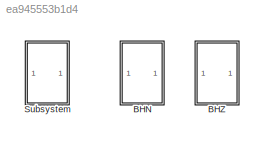
MODEL slx_ea945553b1d4
KIND model
CONFIG AbsTol = auto
CONFIG EnableMultiTasking = off
CONFIG FixedStep = auto
CONFIG MaxStep = auto
CONFIG MinStep = auto
CONFIG RelTol = 1e-3
CONFIG SampleTimeConstraint = Unconstrained
CONFIG SolverName = VariableStepAuto
CONFIG StartTime = 0.0
CONFIG StopTime = 10000
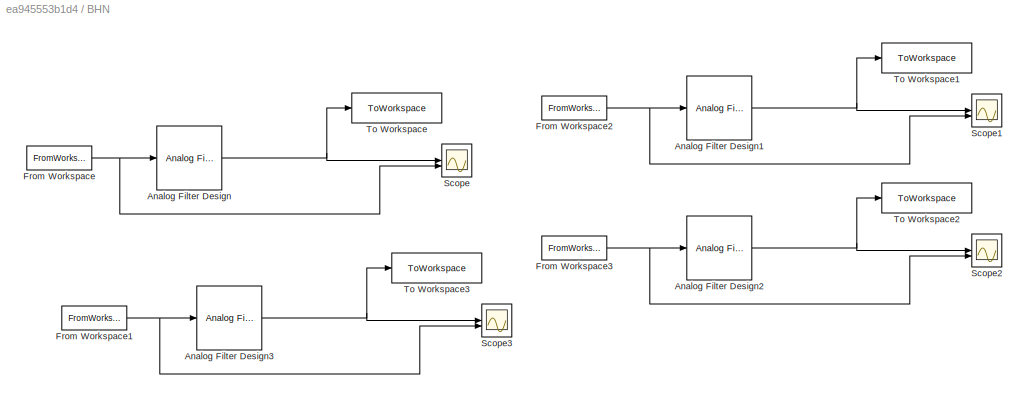
BLOCK [SubSystem] BHN
BLOCK [Reference] BHN/Analog Filter Design  REF=dspfdesign/Analog
Filter Design
  SourceBlock = dspfdesign/Analog\nFilter Design
  SourceType = Analog Filter Design
BLOCK [Reference] BHN/Analog Filter Design1  REF=dspfdesign/Analog
Filter Design
  SourceBlock = dspfdesign/Analog\nFilter Design
  SourceType = Analog Filter Design
BLOCK [Reference] BHN/Analog Filter Design2  REF=dspfdesign/Analog
Filter Design
  SourceBlock = dspfdesign/Analog\nFilter Design
  SourceType = Analog Filter Design
BLOCK [Reference] BHN/Analog Filter Design3  REF=dspfdesign/Analog
Filter Design
  SourceBlock = dspfdesign/Analog\nFilter Design
  SourceType = Analog Filter Design
BLOCK [FromWorkspace] BHN/From Workspace
  OutputAfterFinalValue = Holding final value
  VariableName = dataN_XAN_couple
BLOCK [FromWorkspace] BHN/From Workspace1
  OutputAfterFinalValue = Holding final value
  VariableName = dataN_LANT_couple
BLOCK [FromWorkspace] BHN/From Workspace2
  OutputAfterFinalValue = Holding final value
  VariableName = dataN_MEIX_couple
BLOCK [FromWorkspace] BHN/From Workspace3
  OutputAfterFinalValue = Holding final value
  VariableName = dataN_ZOZT_couple
BLOCK [Scope] BHN/Scope
  Floating = off
  NumInputPorts = 2
  ScopeSpecificationString = Simulink.scopes.TimeScopeBlockCfg('CurrentConfiguration', extmgr.ConfigurationSet(extmgr.Configuration('Core','General UI',true),extmgr.Configuration('Core','Source UI',true),extmgr.Configuration('Sources','WiredSimulink',true,'SampleTime','0.01'),extmgr.Configuration('Visuals','Time Domain',true,'SerializedDisplays',{struct('MinYLimReal','-139110.97189','MaxYLimReal','155657.33771','YLabelReal','...<+1461ch>
BLOCK [Scope] BHN/Scope1
  Floating = off
  NumInputPorts = 2
  ScopeSpecificationString = Simulink.scopes.TimeScopeBlockCfg('CurrentConfiguration', extmgr.ConfigurationSet(extmgr.Configuration('Core','General UI',true),extmgr.Configuration('Core','Source UI',true),extmgr.Configuration('Sources','WiredSimulink',true,'SampleTime','0.01','DataLoggingVariableName','ScopeData1'),extmgr.Configuration('Visuals','Time Domain',true,'SerializedDisplays',{struct('MinYLimReal','-139110.97189','Max...<+1500ch>  <repeated x3 — deduplicated; at blocks: Scope1>
BLOCK [Scope] BHN/Scope2
  Floating = off
  NumInputPorts = 2
  ScopeSpecificationString = Simulink.scopes.TimeScopeBlockCfg('CurrentConfiguration', extmgr.ConfigurationSet(extmgr.Configuration('Core','General UI',true),extmgr.Configuration('Core','Source UI',true),extmgr.Configuration('Sources','WiredSimulink',true,'SampleTime','0.01','DataLoggingVariableName','ScopeData2'),extmgr.Configuration('Visuals','Time Domain',true,'SerializedDisplays',{struct('MinYLimReal','-139110.97189','Max...<+1500ch>  <repeated x3 — deduplicated; at blocks: Scope2>
BLOCK [Scope] BHN/Scope3
  Floating = off
  NumInputPorts = 2
  ScopeSpecificationString = Simulink.scopes.TimeScopeBlockCfg('CurrentConfiguration', extmgr.ConfigurationSet(extmgr.Configuration('Core','General UI',true),extmgr.Configuration('Core','Source UI',true),extmgr.Configuration('Sources','WiredSimulink',true,'SampleTime','0.01','DataLoggingVariableName','ScopeData3'),extmgr.Configuration('Visuals','Time Domain',true,'SerializedDisplays',{struct('MinYLimReal','-139110.97189','Max...<+1500ch>  <repeated x3 — deduplicated; at blocks: Scope3>
BLOCK [ToWorkspace] BHN/To Workspace
  FixptAsFi = on
  MaxDataPoints = inf
  SampleTime = -1
  VariableName = dataN_XAN_filtereded
BLOCK [ToWorkspace] BHN/To Workspace1
  FixptAsFi = on
  MaxDataPoints = inf
  SampleTime = -1
  VariableName = dataN_MEIX_filtereded
BLOCK [ToWorkspace] BHN/To Workspace2
  FixptAsFi = on
  MaxDataPoints = inf
  SampleTime = -1
  VariableName = dataN_ZOZT_filtereded
BLOCK [ToWorkspace] BHN/To Workspace3
  FixptAsFi = on
  MaxDataPoints = inf
  SampleTime = -1
  VariableName = dataN_LANT_filtereded
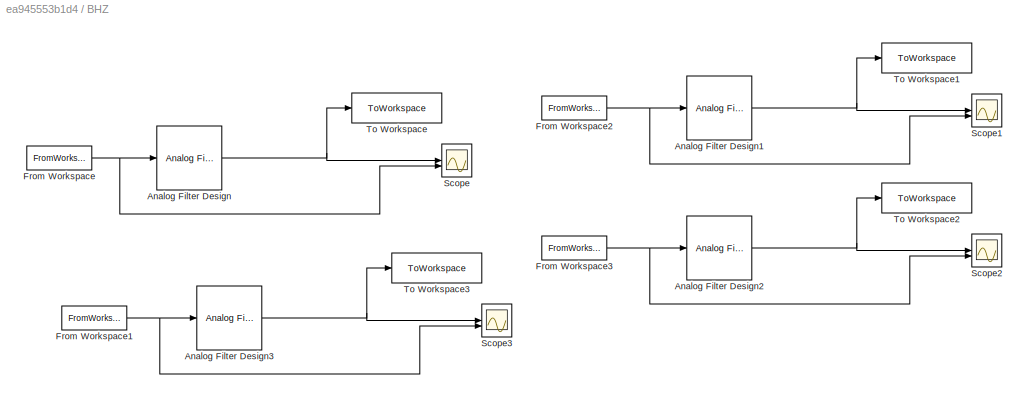
BLOCK [SubSystem] BHZ
BLOCK [Reference] BHZ/Analog Filter Design  REF=dspfdesign/Analog
Filter Design
  SourceBlock = dspfdesign/Analog\nFilter Design
  SourceType = Analog Filter Design
BLOCK [Reference] BHZ/Analog Filter Design1  REF=dspfdesign/Analog
Filter Design
  SourceBlock = dspfdesign/Analog\nFilter Design
  SourceType = Analog Filter Design
BLOCK [Reference] BHZ/Analog Filter Design2  REF=dspfdesign/Analog
Filter Design
  SourceBlock = dspfdesign/Analog\nFilter Design
  SourceType = Analog Filter Design
BLOCK [Reference] BHZ/Analog Filter Design3  REF=dspfdesign/Analog
Filter Design
  SourceBlock = dspfdesign/Analog\nFilter Design
  SourceType = Analog Filter Design
BLOCK [FromWorkspace] BHZ/From Workspace
  OutputAfterFinalValue = Holding final value
  VariableName = dataZ_XAN_couple
BLOCK [FromWorkspace] BHZ/From Workspace1
  OutputAfterFinalValue = Holding final value
  VariableName = dataZ_LANT_couple
BLOCK [FromWorkspace] BHZ/From Workspace2
  OutputAfterFinalValue = Holding final value
  VariableName = dataZ_MEIX_couple
BLOCK [FromWorkspace] BHZ/From Workspace3
  OutputAfterFinalValue = Holding final value
  VariableName = dataZ_ZOZT_couple
BLOCK [Scope] BHZ/Scope
  Floating = off
  NumInputPorts = 2
  ScopeSpecificationString = Simulink.scopes.TimeScopeBlockCfg('CurrentConfiguration', extmgr.ConfigurationSet(extmgr.Configuration('Core','General UI',true),extmgr.Configuration('Core','Source UI',true),extmgr.Configuration('Sources','WiredSimulink',true,'SampleTime','0.01'),extmgr.Configuration('Visuals','Time Domain',true,'SerializedDisplays',{struct('MinYLimReal','-139110.97189','MaxYLimReal','155657.33771','YLabelReal','...<+1461ch>
BLOCK [Scope] BHZ/Scope1
  Floating = off
  NumInputPorts = 2
BLOCK [Scope] BHZ/Scope2
  Floating = off
  NumInputPorts = 2
BLOCK [Scope] BHZ/Scope3
  Floating = off
  NumInputPorts = 2
BLOCK [ToWorkspace] BHZ/To Workspace
  FixptAsFi = on
  MaxDataPoints = inf
  SampleTime = -1
  VariableName = dataZ_XAN_filtereded
BLOCK [ToWorkspace] BHZ/To Workspace1
  FixptAsFi = on
  MaxDataPoints = inf
  SampleTime = -1
  VariableName = dataZ_MEIX_filtereded
BLOCK [ToWorkspace] BHZ/To Workspace2
  FixptAsFi = on
  MaxDataPoints = inf
  SampleTime = -1
  VariableName = dataZ_ZOZT_filtereded
BLOCK [ToWorkspace] BHZ/To Workspace3
  FixptAsFi = on
  MaxDataPoints = inf
  SampleTime = -1
  VariableName = dataZ_LANT_filtereded
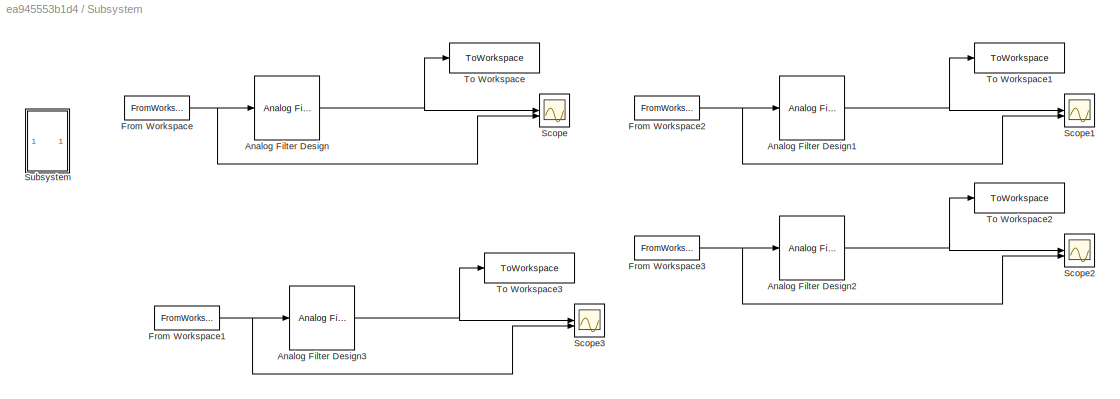
BLOCK [SubSystem] Subsystem
BLOCK [Reference] Subsystem/Analog Filter Design  REF=dspfdesign/Analog
Filter Design
  SourceBlock = dspfdesign/Analog\nFilter Design
  SourceType = Analog Filter Design
BLOCK [Reference] Subsystem/Analog Filter Design1  REF=dspfdesign/Analog
Filter Design
  SourceBlock = dspfdesign/Analog\nFilter Design
  SourceType = Analog Filter Design
BLOCK [Reference] Subsystem/Analog Filter Design2  REF=dspfdesign/Analog
Filter Design
  SourceBlock = dspfdesign/Analog\nFilter Design
  SourceType = Analog Filter Design
BLOCK [Reference] Subsystem/Analog Filter Design3  REF=dspfdesign/Analog
Filter Design
  SourceBlock = dspfdesign/Analog\nFilter Design
  SourceType = Analog Filter Design
BLOCK [FromWorkspace] Subsystem/From Workspace
  OutputAfterFinalValue = Holding final value
  VariableName = dataE_XAN_couple
BLOCK [FromWorkspace] Subsystem/From Workspace1
  OutputAfterFinalValue = Holding final value
  VariableName = dataE_LANT_couple
BLOCK [FromWorkspace] Subsystem/From Workspace2
  OutputAfterFinalValue = Holding final value
  VariableName = dataE_MEIX_couple
BLOCK [FromWorkspace] Subsystem/From Workspace3
  OutputAfterFinalValue = Holding final value
  VariableName = dataE_ZOZT_couple
BLOCK [Scope] Subsystem/Scope
  Floating = off
  NumInputPorts = 2
  ScopeSpecificationString = Simulink.scopes.TimeScopeBlockCfg('CurrentConfiguration', extmgr.ConfigurationSet(extmgr.Configuration('Core','General UI',true),extmgr.Configuration('Core','Source UI',true),extmgr.Configuration('Sources','WiredSimulink',true,'SampleTime','0.01','DataLoggingVariableName','ScopeData1'),extmgr.Configuration('Visuals','Time Domain',true,'SerializedDisplays',{struct('MinYLimReal','-139110.97189','Max...<+1526ch>
BLOCK [Scope] Subsystem/Scope1
  Floating = off
  NumInputPorts = 2
BLOCK [Scope] Subsystem/Scope2
  Floating = off
  NumInputPorts = 2
BLOCK [Scope] Subsystem/Scope3
  Floating = off
  NumInputPorts = 2
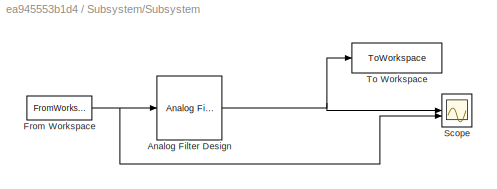
BLOCK [SubSystem] Subsystem/Subsystem
BLOCK [Reference] Subsystem/Subsystem/Analog Filter Design  REF=dspfdesign/Analog
Filter Design
  SourceBlock = dspfdesign/Analog\nFilter Design
  SourceType = Analog Filter Design
BLOCK [FromWorkspace] Subsystem/Subsystem/From Workspace
  OutputAfterFinalValue = Holding final value
  VariableName = dataE_XAN_couple
BLOCK [Scope] Subsystem/Subsystem/Scope
  Floating = off
  NumInputPorts = 2
  ScopeSpecificationString = Simulink.scopes.TimeScopeBlockCfg('CurrentConfiguration', extmgr.ConfigurationSet(extmgr.Configuration('Core','General UI',true),extmgr.Configuration('Core','Source UI',true),extmgr.Configuration('Sources','WiredSimulink',true,'SampleTime','0.01'),extmgr.Configuration('Visuals','Time Domain',true,'SerializedDisplays',{struct('MinYLimReal','-139110.97189','MaxYLimReal','155657.33771','YLabelReal','...<+1487ch>
BLOCK [ToWorkspace] Subsystem/Subsystem/To Workspace
  FixptAsFi = on
  MaxDataPoints = inf
  SampleTime = -1
  VariableName = dataE_XAN_filtereded
BLOCK [ToWorkspace] Subsystem/To Workspace
  FixptAsFi = on
  MaxDataPoints = inf
  SampleTime = -1
  VariableName = dataE_XAN_filtereded1
BLOCK [ToWorkspace] Subsystem/To Workspace1
  FixptAsFi = on
  MaxDataPoints = inf
  SampleTime = -1
  VariableName = dataE_MEIX_filtereded
BLOCK [ToWorkspace] Subsystem/To Workspace2
  FixptAsFi = on
  MaxDataPoints = inf
  SampleTime = -1
  VariableName = dataE_ZOZT_filtereded
BLOCK [ToWorkspace] Subsystem/To Workspace3
  FixptAsFi = on
  MaxDataPoints = inf
  SampleTime = -1
  VariableName = dataE_LANT_filtereded
NET BHN/Analog Filter Design1:1 -> BHN/Scope1:1, BHN/To Workspace1:1
NET BHN/Analog Filter Design2:1 -> BHN/Scope2:1, BHN/To Workspace2:1
NET BHN/Analog Filter Design3:1 -> BHN/Scope3:1, BHN/To Workspace3:1
NET BHN/Analog Filter Design:1 -> BHN/Scope:1, BHN/To Workspace:1
NET BHN/From Workspace1:1 -> BHN/Analog Filter Design3:1, BHN/Scope3:2
NET BHN/From Workspace2:1 -> BHN/Analog Filter Design1:1, BHN/Scope1:2
NET BHN/From Workspace3:1 -> BHN/Analog Filter Design2:1, BHN/Scope2:2
NET BHN/From Workspace:1 -> BHN/Analog Filter Design:1, BHN/Scope:2
NET BHZ/Analog Filter Design1:1 -> BHZ/Scope1:1, BHZ/To Workspace1:1
NET BHZ/Analog Filter Design2:1 -> BHZ/Scope2:1, BHZ/To Workspace2:1
NET BHZ/Analog Filter Design3:1 -> BHZ/Scope3:1, BHZ/To Workspace3:1
NET BHZ/Analog Filter Design:1 -> BHZ/Scope:1, BHZ/To Workspace:1
NET BHZ/From Workspace1:1 -> BHZ/Analog Filter Design3:1, BHZ/Scope3:2
NET BHZ/From Workspace2:1 -> BHZ/Analog Filter Design1:1, BHZ/Scope1:2
NET BHZ/From Workspace3:1 -> BHZ/Analog Filter Design2:1, BHZ/Scope2:2
NET BHZ/From Workspace:1 -> BHZ/Analog Filter Design:1, BHZ/Scope:2
NET Subsystem/Analog Filter Design1:1 -> Subsystem/Scope1:1, Subsystem/To Workspace1:1
NET Subsystem/Analog Filter Design2:1 -> Subsystem/Scope2:1, Subsystem/To Workspace2:1
NET Subsystem/Analog Filter Design3:1 -> Subsystem/Scope3:1, Subsystem/To Workspace3:1
NET Subsystem/Analog Filter Design:1 -> Subsystem/Scope:1, Subsystem/To Workspace:1
NET Subsystem/From Workspace1:1 -> Subsystem/Analog Filter Design3:1, Subsystem/Scope3:2
NET Subsystem/From Workspace2:1 -> Subsystem/Analog Filter Design1:1, Subsystem/Scope1:2
NET Subsystem/From Workspace3:1 -> Subsystem/Analog Filter Design2:1, Subsystem/Scope2:2
NET Subsystem/From Workspace:1 -> Subsystem/Analog Filter Design:1, Subsystem/Scope:2
NET Subsystem/Subsystem/Analog Filter Design:1 -> Subsystem/Subsystem/Scope:1, Subsystem/Subsystem/To Workspace:1
NET Subsystem/Subsystem/From Workspace:1 -> Subsystem/Subsystem/Analog Filter Design:1, Subsystem/Subsystem/Scope:2
note: NET lines group one-source signal fan-out (src -> all destinations, sorted); 1:1 wires keep LINE
